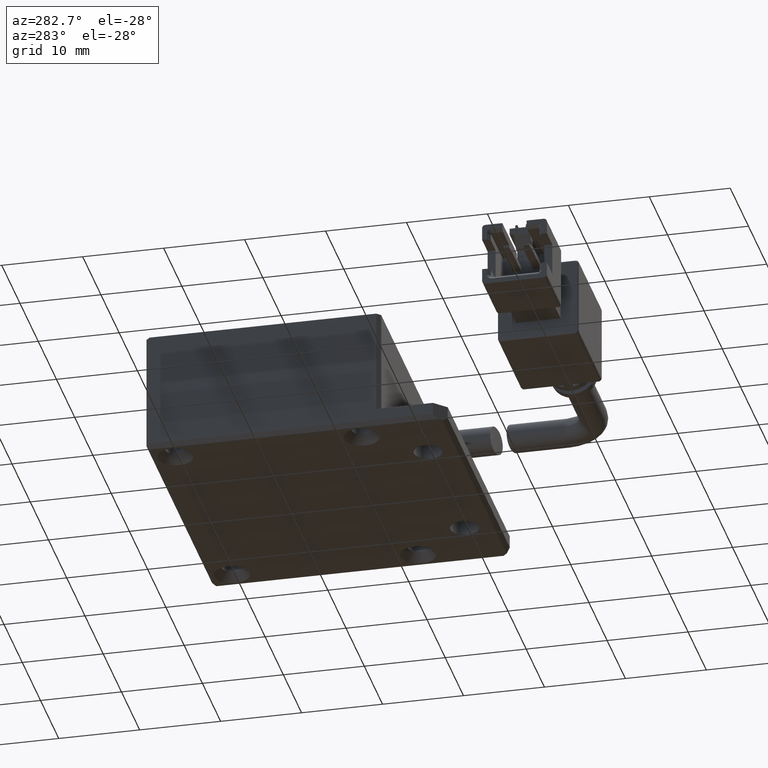
[diagram: clean part render]
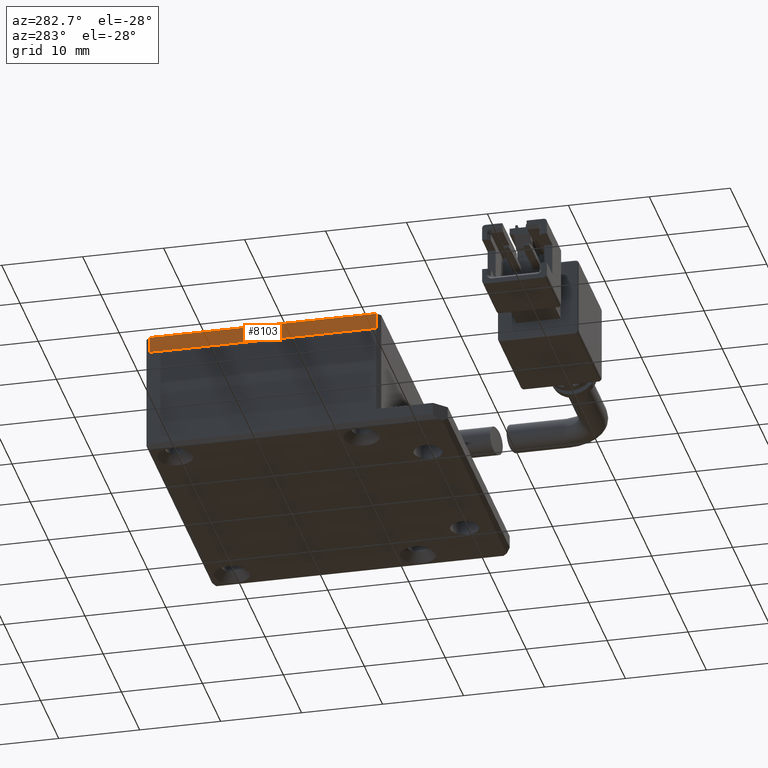
[diagram: same view with one face highlighted and labeled with its STEP entity id]
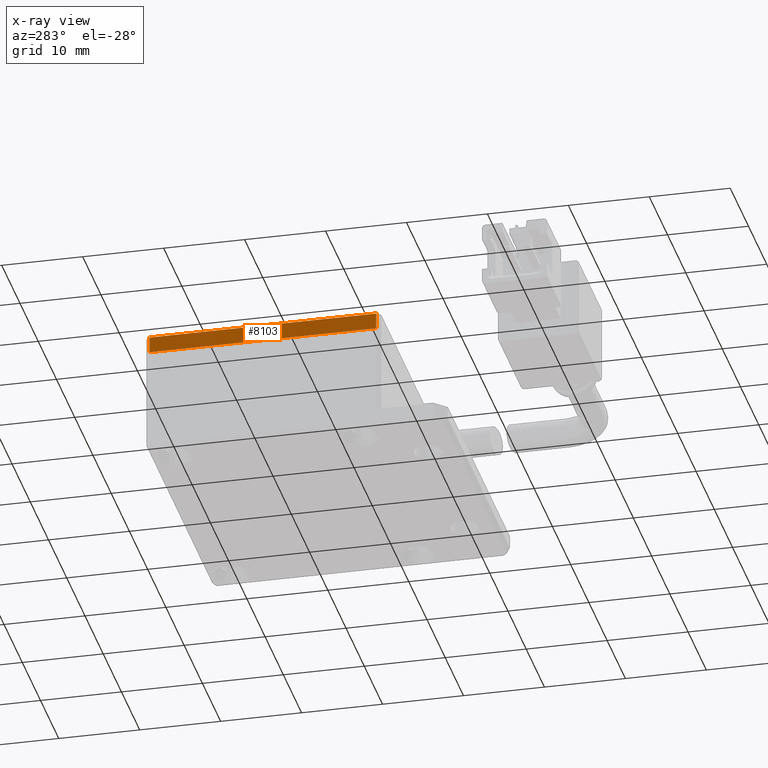
[diagram: x-ray of the same camera — body ghosted, the highlighted face saturated]
A machine part, auxiliary view. The second image highlights one B-rep face of the part: STEP entity #8103.
The next image is the same camera in x-ray: the body ghosted, the highlighted face saturated — about 0% of this face is hidden behind the body in this view.
In plain terms, the highlighted planar face has unit normal (1, 0, -0).
Its self-contained STEP definition (entity closure, byte-faithful):
#1197 = ORIENTED_EDGE ( 'NONE', *, *, #9536, .T. ) ;
#3894 = CARTESIAN_POINT ( 'NONE',  ( -18.02940053455517200, -14.55364642993505200, 12.99999999998363100 ) ) ;
#3901 = VECTOR ( 'NONE', #20286, 1000.000000000000000 ) ;
#3943 = DIRECTION ( 'NONE',  ( 1.000000000000000000, 0.0000000000000000000, -0.0000000000000000000 ) ) ;
#4619 = CARTESIAN_POINT ( 'NONE',  ( -18.02940053455517200, 13.44635357006491800, 10.99999999998363100 ) ) ;
#5422 = ORIENTED_EDGE ( 'NONE', *, *, #19850, .F. ) ;
#5786 = AXIS2_PLACEMENT_3D ( 'NONE', #16229, #3943, #18312 ) ;
#7820 = FACE_OUTER_BOUND ( 'NONE', #26444, .T. ) ;
#7959 = ORIENTED_EDGE ( 'NONE', *, *, #15182, .F. ) ;
#8038 = PLANE ( 'NONE',  #5786 ) ;
#8103 = ADVANCED_FACE ( 'NONE', ( #7820 ), #8038, .F. ) ;
#9536 = EDGE_CURVE ( 'NONE', #16568, #17074, #14794, .T. ) ;
#10085 = CARTESIAN_POINT ( 'NONE',  ( -18.02940053455517200, -15.05364642993506900, 10.99999999998363100 ) ) ;
#10552 = ORIENTED_EDGE ( 'NONE', *, *, #12254, .F. ) ;
#11491 = VERTEX_POINT ( 'NONE', #3894 ) ;
#12254 = EDGE_CURVE ( 'NONE', #12732, #11491, #18830, .T. ) ;
#12732 = VERTEX_POINT ( 'NONE', #21555 ) ;
#13368 = VECTOR ( 'NONE', #26147, 1000.000000000000000 ) ;
#14794 = LINE ( 'NONE', #10085, #3901 ) ;
#15182 = EDGE_CURVE ( 'NONE', #11491, #17074, #19710, .T. ) ;
#15285 = CARTESIAN_POINT ( 'NONE',  ( -18.02940053455517200, -14.55364642993505300, 10.99999999998363100 ) ) ;
#16229 = CARTESIAN_POINT ( 'NONE',  ( -18.02940053455517200, 13.94635357006491800, 12.99999999998363100 ) ) ;
#16568 = VERTEX_POINT ( 'NONE', #4619 ) ;
#17074 = VERTEX_POINT ( 'NONE', #15285 ) ;
#18135 = CARTESIAN_POINT ( 'NONE',  ( -18.02940053455517200, -14.55364642993504800, 12.99999999998363100 ) ) ;
#18312 = DIRECTION ( 'NONE',  ( -0.0000000000000000000, 0.0000000000000000000, -1.000000000000000000 ) ) ;
#18830 = LINE ( 'NONE', #19931, #13368 ) ;
#19091 = VECTOR ( 'NONE', #24334, 1000.000000000000000 ) ;
#19710 = LINE ( 'NONE', #18135, #19091 ) ;
#19850 = EDGE_CURVE ( 'NONE', #16568, #12732, #26399, .T. ) ;
#19931 = CARTESIAN_POINT ( 'NONE',  ( -18.02940053455517200, 13.94635357006491800, 12.99999999998363100 ) ) ;
#20286 = DIRECTION ( 'NONE',  ( 0.0000000000000000000, -1.000000000000000000, -0.0000000000000000000 ) ) ;
#20942 = VECTOR ( 'NONE', #23372, 1000.000000000000000 ) ;
#21555 = CARTESIAN_POINT ( 'NONE',  ( -18.02940053455517200, 13.44635357006492200, 12.99999999998363100 ) ) ;
#23194 = CARTESIAN_POINT ( 'NONE',  ( -18.02940053455517200, 13.44635357006491600, 12.99999999998363100 ) ) ;
#23372 = DIRECTION ( 'NONE',  ( 0.0000000000000000000, -0.0000000000000000000, 1.000000000000000000 ) ) ;
#24334 = DIRECTION ( 'NONE',  ( -0.0000000000000000000, 0.0000000000000000000, -1.000000000000000000 ) ) ;
#26147 = DIRECTION ( 'NONE',  ( -0.0000000000000000000, -1.000000000000000000, -0.0000000000000000000 ) ) ;
#26399 = LINE ( 'NONE', #23194, #20942 ) ;
#26444 = EDGE_LOOP ( 'NONE', ( #7959, #10552, #5422, #1197 ) ) ;